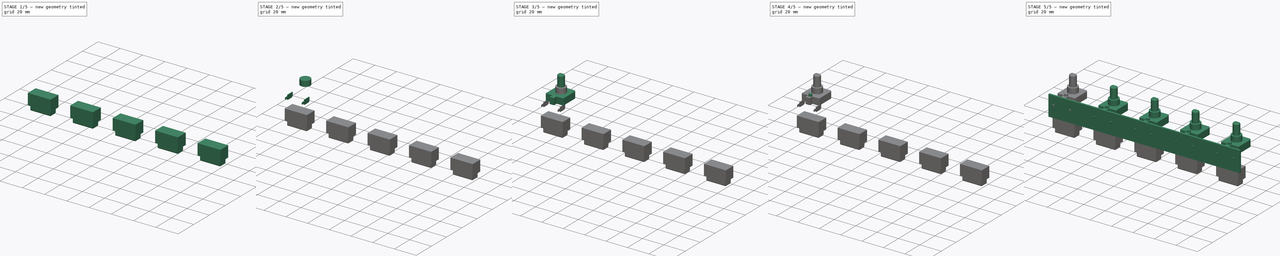
[diagram: build sequence overview — one tinted view per stage of 5, left to right]
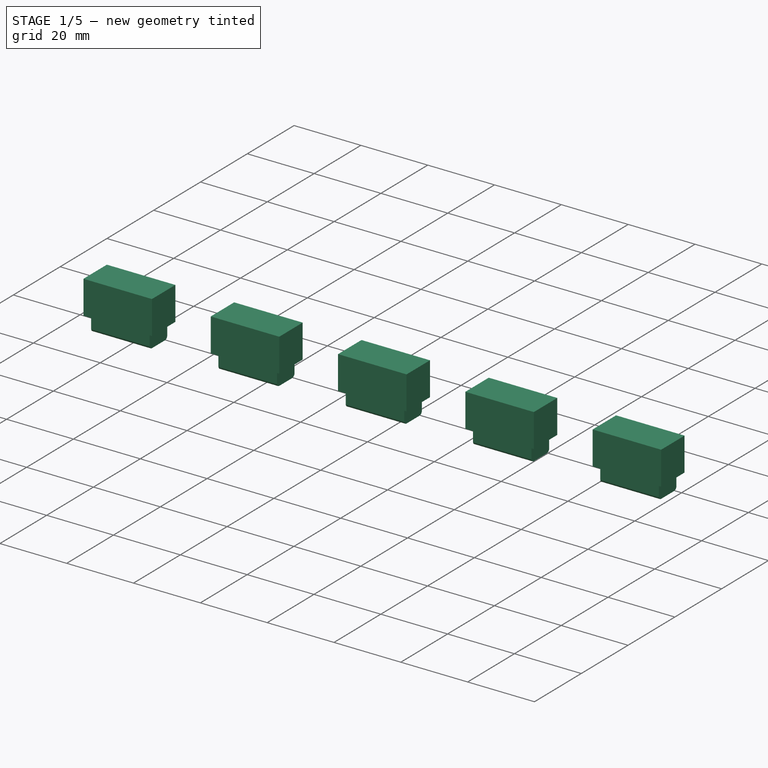
[diagram: stage 1 of 5 — iso view after this stage's code; geometry added in this stage tinted green]
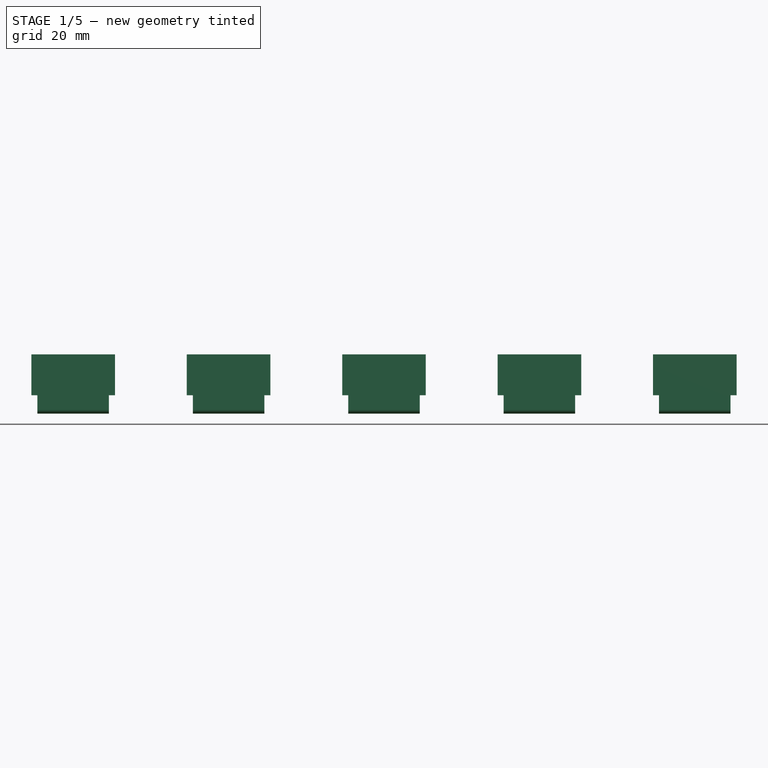
[diagram: stage 1 of 5 — front view after this stage's code; geometry added in this stage tinted green]
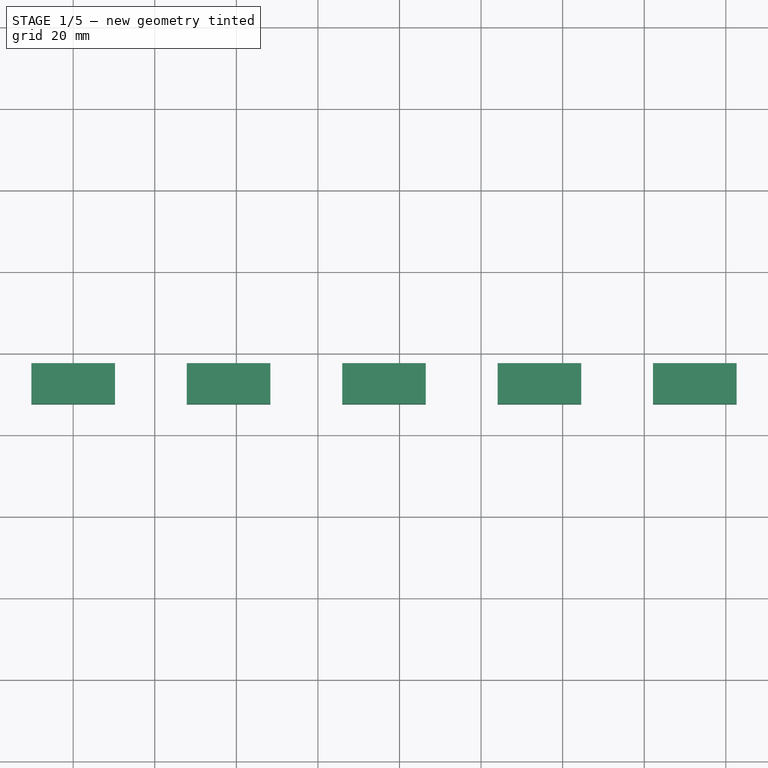
[diagram: stage 1 of 5 — top view after this stage's code; geometry added in this stage tinted green]
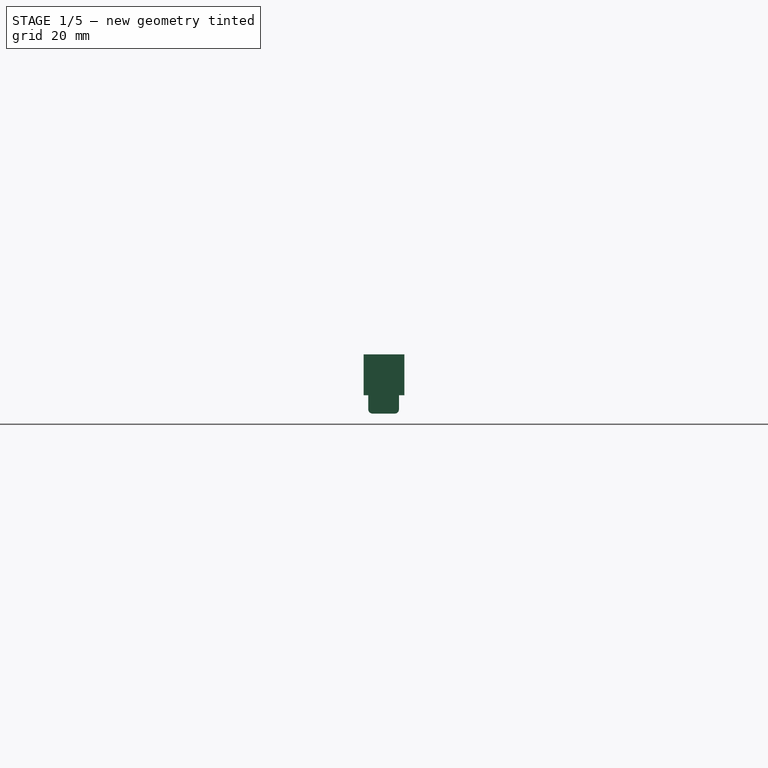
[diagram: stage 1 of 5 — right view after this stage's code; geometry added in this stage tinted green]
FCSTD DOCUMENT  (FreeCAD 0.17R13541 (Git))
Label: encoders
License: All rights reserved
LicenseURL: http://en.wikipedia.org/wiki/All_rights_reserved
objects: Sketcher::SketchObject×10, PartDesign::Pad×9, PartDesign::Body×4, Part::FeaturePython×3, Part::Fuse×3, PartDesign::Chamfer×1, PartDesign::Pocket×1, PartDesign::ShapeBinder×1, PartDesign::Plane×1, PartDesign::Fillet×1
note: 44 computed .brp shape members not serialized (recipe doc carries the construction recipe); baked Part::Feature solids carry a one-line shape summary decoded from their .brp

FEATURE [PartDesign::ShapeBinder] CopyFusion001
FEATURE [PartDesign::Plane] DatumPlane
  MapMode = 5
  Placement = pos=(0,-12.5,0) rot=(0,0.707107,0.707107;3.14159rad)
  Support = -> [CopyFusion001]
FEATURE [Sketcher::SketchObject] Sketch008
  MapMode = 5
  Placement = pos=(0,-12.5,0) rot=(0,0.707107,0.707107;3.14159rad)
  Support = -> [DatumPlane]
  sketch-geometry (4):
    g0: LineSegment StartX=-10.25 StartY=-18 StartZ=0 EndX=10.25 EndY=-18 EndZ=0
    g1: LineSegment StartX=10.25 StartY=-18 StartZ=0 EndX=10.25 EndY=-28 EndZ=0
    g2: LineSegment StartX=10.25 StartY=-28 StartZ=0 EndX=-10.25 EndY=-28 EndZ=0
    g3: LineSegment StartX=-10.25 StartY=-28 StartZ=0 EndX=-10.25 EndY=-18 EndZ=0
  constraints (12):
    c: Coincident(g0,g1)
    c: Coincident(g1,g2)
    c: Coincident(g2,g3)
    c: Coincident(g3,g0)
    c: Horizontal(g0)
    c: Horizontal(g2)
    c: Vertical(g1)
    c: Vertical(g3)
    c: Distance(g2) = 20.5
    c: DistanceX(g-2,g0) = 10.25
    c: DistanceY(g-1,g0) = -18
    c: Distance(g1) = 10
FEATURE [PartDesign::Pad] Pad007
  Length = 10
  Length2 = 100
  Placement = pos=(0,-12.5,0) rot=(0,0.707107,0.707107;3.14159rad)
  Profile = -> Sketch008
  Type = 0
FEATURE [Sketcher::SketchObject] Sketch009
  MapMode = 5
  Placement = pos=(0,-12.5,-28) rot=(0,1,0;3.14159rad)
  Support = -> [Pad007]
  sketch-geometry (4):
    g0: LineSegment StartX=-8.75928 StartY=1.15231 StartZ=0 EndX=8.7674 EndY=1.15231 EndZ=0
    g1: LineSegment StartX=8.7674 StartY=1.15231 StartZ=0 EndX=8.7674 EndY=8.6642 EndZ=0
    g2: LineSegment StartX=-8.75928 StartY=8.6642 StartZ=0 EndX=-8.75928 EndY=1.15231 EndZ=0
    g3: LineSegment StartX=-8.75928 StartY=8.6642 StartZ=0 EndX=8.7674 EndY=8.6642 EndZ=0
  constraints (8):
    c: Horizontal(g0)
    c: Coincident(g0,g1)
    c: Vertical(g1)
    c: Coincident(g2,g0)
    c: Vertical(g2)
    c: Coincident(g3,g2)
    c: Horizontal(g3)
    c: Coincident(g1,g3)
FEATURE [PartDesign::Pad] Pad008
  BaseFeature = -> Pad007
  Length = 4.5
  Length2 = 100
  Placement = pos=(0,-12.5,0) rot=(0,0.707107,0.707107;3.14159rad)
  Profile = -> Sketch009
  Type = 0
FEATURE [PartDesign::Fillet] Fillet
  Base = -> Pad008 [Edge18,Edge23]
  BaseFeature = -> Pad008
  Placement = pos=(0,-12.5,0) rot=(0,0.707107,0.707107;3.14159rad)
  Radius = 1
FEATURE [PartDesign::Body] Body003  label="socket"
  Group = -> [Sketch008,DatumPlane,CopyFusion001,Pad007,Sketch009,Pad008,Fillet]
  Origin = -> Origin003
  Tip = -> Fillet
FEATURE [Part::FeaturePython] Array002  label="sockets"  # Draft array (typed FeaturePython)
  Angle = 360
  ArrayType = 0
  Axis = (0,0,1)
  Base = -> Body003
  Center = (0,0,0)
  Fuse = false
  IntervalAxis = (0,0,0)
  IntervalX = (38.1,0,0)
  IntervalY = (0,1,0)
  IntervalZ = (0,0,0)
  NumberPolar = 1
  NumberX = 5
  NumberY = 1
  NumberZ = 1
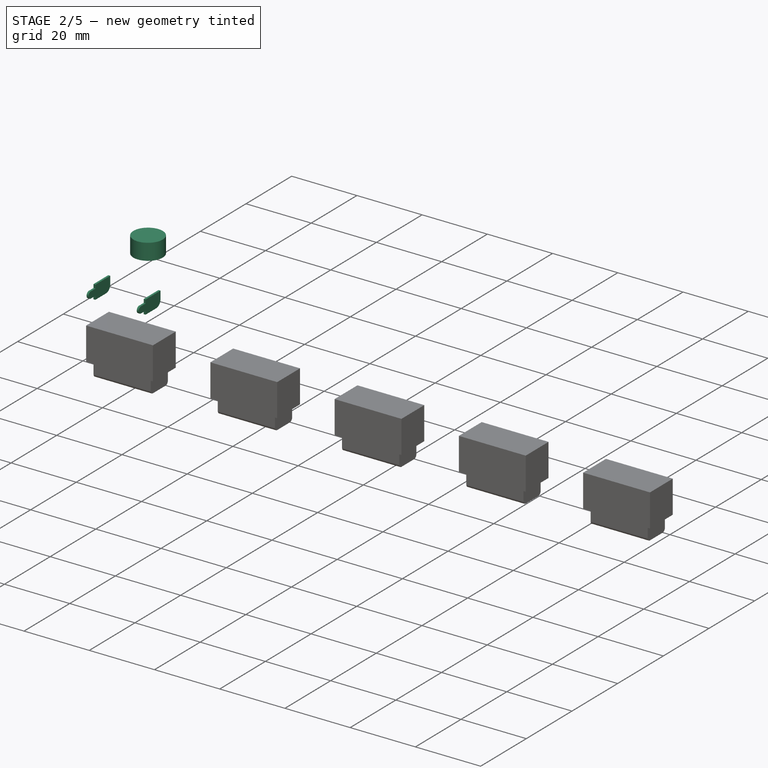
[diagram: stage 2 of 5 — iso view after this stage's code; geometry added in this stage tinted green]
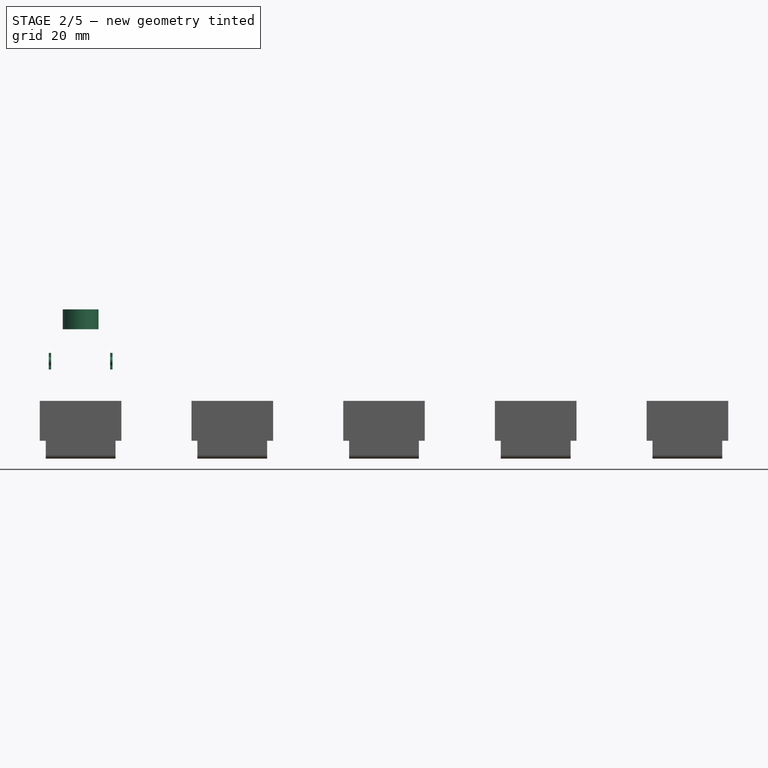
[diagram: stage 2 of 5 — front view after this stage's code; geometry added in this stage tinted green]
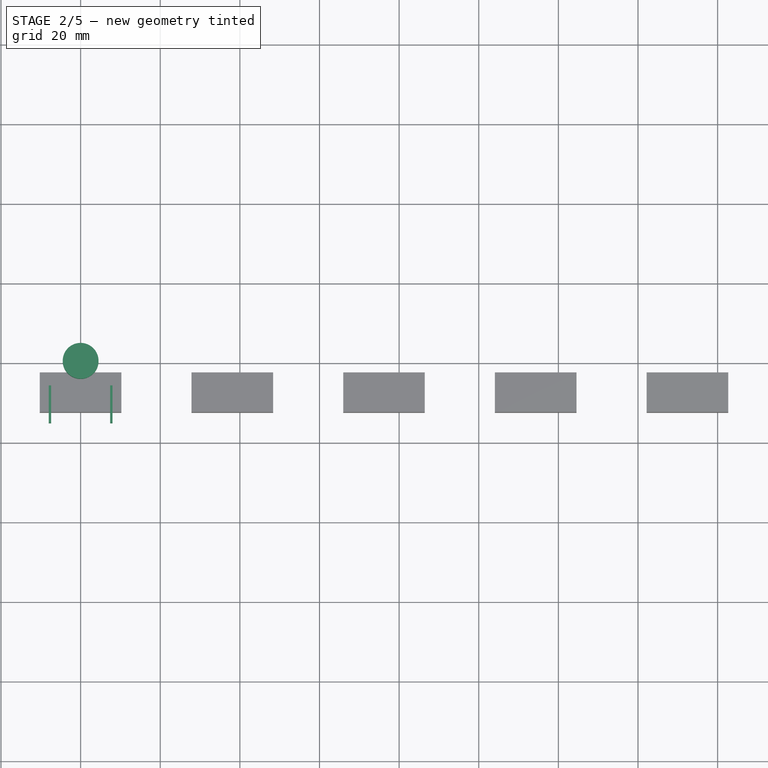
[diagram: stage 2 of 5 — top view after this stage's code; geometry added in this stage tinted green]
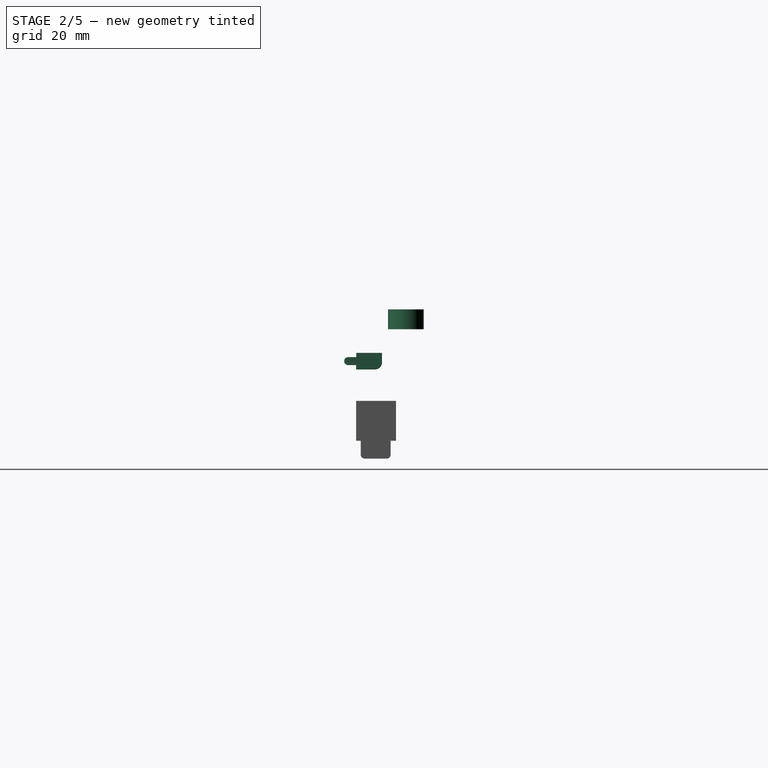
[diagram: stage 2 of 5 — right view after this stage's code; geometry added in this stage tinted green]
FEATURE [Sketcher::SketchObject] Sketch
  MapMode = 5
  Support = -> [XY_Plane]
  sketch-geometry (1):
    g0: Circle CenterX=0 CenterY=0 CenterZ=0 NormalX=0 NormalY=0 NormalZ=1 AngleXU=0 Radius=4.5
  constraints (2):
    c: Coincident(g0,g-1)
    c: Radius(g0) = 4.5
FEATURE [PartDesign::Pad] Pad
  Length = 5
  Length2 = 100
  Profile = -> Sketch
  Type = 0
FEATURE [PartDesign::Body] Body  label="encoder"
  Group = -> [Sketch,Pad,Sketch001,Pad001,Chamfer,Sketch002,Pocket,Sketch003,Pad002,Sketch004,Pad003,Sketch005,Pad004]
  Origin = -> Origin
  Tip = -> Pad004
FEATURE [Sketcher::SketchObject] Sketch006
  MapMode = 5
  Placement = pos=(0,0,0) rot=(0.57735,0.57735,0.57735;2.0944rad)
  Support = -> [YZ_Plane001]
  sketch-geometry (9):
    g0: LineSegment StartX=-5.98946 StartY=-5.92103 StartZ=0 EndX=-5.98946 EndY=-8.32996 EndZ=0
    g1: LineSegment StartX=-7.7595 StartY=-10.1 StartZ=0 EndX=-12.5 EndY=-10.1 EndZ=0
    g2: LineSegment StartX=-12.5 StartY=-10.1 StartZ=0 EndX=-12.5 EndY=-9 EndZ=0
    g3: LineSegment StartX=-12.5 StartY=-9 StartZ=0 EndX=-14.5 EndY=-9 EndZ=0
    g4: LineSegment StartX=-14.5 StartY=-7 StartZ=0 EndX=-12.4748 EndY=-7 EndZ=0
    g5: LineSegment StartX=-12.4748 StartY=-7 StartZ=0 EndX=-12.4748 EndY=-5.92103 EndZ=0
    g6: LineSegment StartX=-12.4748 StartY=-5.92103 StartZ=0 EndX=-5.98946 EndY=-5.92103 EndZ=0
    g7: ArcOfCircle CenterX=-7.7595 CenterY=-8.32996 CenterZ=0 NormalX=0 NormalY=0 NormalZ=1 AngleXU=0 Radius=1.77004 StartAngle=4.71239 EndAngle=6.28319
    g8: ArcOfCircle CenterX=-14.5 CenterY=-8 CenterZ=0 NormalX=0 NormalY=0 NormalZ=1 AngleXU=0 Radius=1 StartAngle=1.5708 EndAngle=4.71239
  constraints (23):
    c: Vertical(g0)
    c: Horizontal(g1)
    c: Coincident(g1,g2)
    c: Vertical(g2)
    c: Coincident(g2,g3)
    c: Horizontal(g4)
    c: Coincident(g4,g5)
    c: Coincident(g5,g6)
    c: Coincident(g6,g0)
    c: Horizontal(g6)
    c: Vertical(g5)
    c: Horizontal(g3)
    c: Tangent(g0,g7) = 1.5708
    c: Tangent(g1,g7) = 1.5708
    c: Coincident(g8,g4)
    c: Coincident(g8,g3)
    c: Vertical(g8,g4)
    c: Distance(g2,g4) = 2
    c: Distance(g4,g1) = 3.1
    c: DistanceX(g-2,g1) = -12.5
    c: Vertical(g8,g3)
    c: DistanceX(g-2,g3) = -14.5
    c: DistanceY(g-1,g8) = -8
FEATURE [PartDesign::Pad] Pad005
  Length = 0.6
  Length2 = 100
  Midplane = true
  Placement = pos=(0,0,0) rot=(0.57735,0.57735,0.57735;2.0944rad)
  Profile = -> Sketch006
  Type = 0
FEATURE [PartDesign::Body] Body001  label="encoder-pattes"
  Group = -> [Sketch006,Pad005]
  Origin = -> Origin001
  Tip = -> Pad005
FEATURE [Part::FeaturePython] Array  # Draft array (typed FeaturePython)
  Angle = 360
  ArrayType = 0
  Axis = (0,0,1)
  Base = -> Pad005
  Center = (0,0,0)
  Fuse = false
  IntervalAxis = (0,0,0)
  IntervalX = (15.4,0,0)
  IntervalY = (0,1,0)
  IntervalZ = (0,0,1)
  NumberPolar = 1
  NumberX = 2
  NumberY = 1
  NumberZ = 1
  Placement = pos=(-7.7,0,0) rot=(0,0,1;0rad)
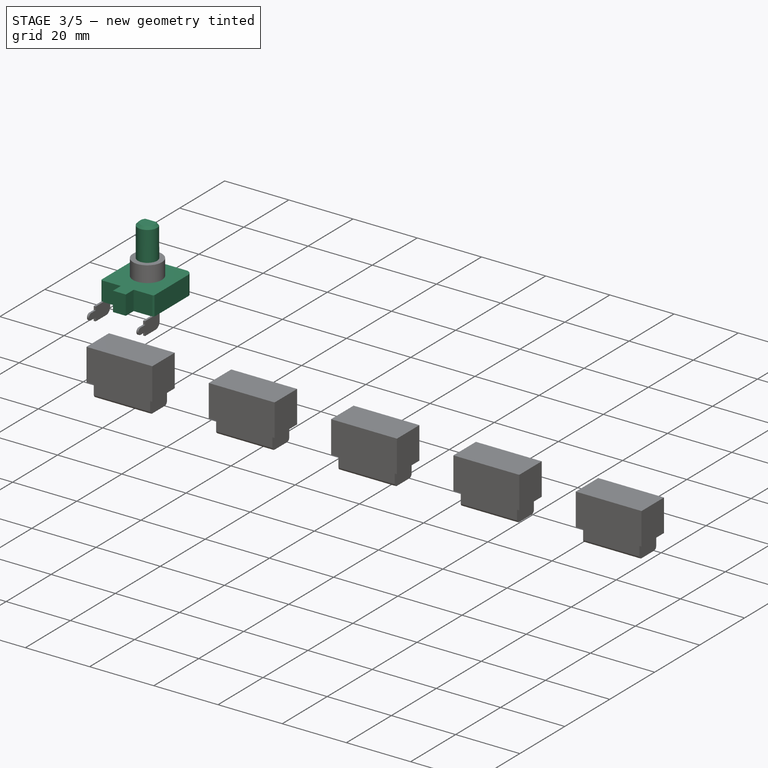
[diagram: stage 3 of 5 — iso view after this stage's code; geometry added in this stage tinted green]
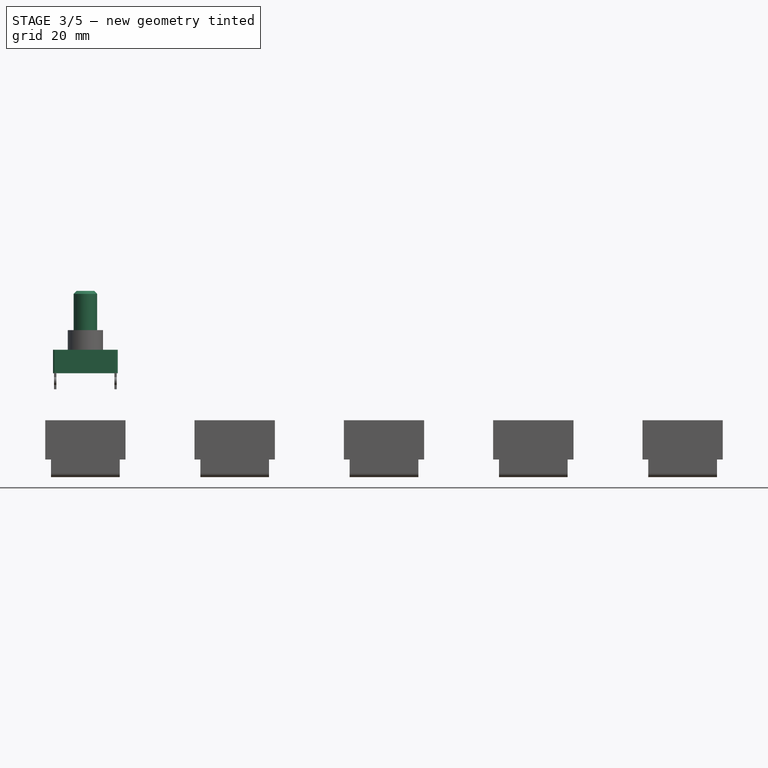
[diagram: stage 3 of 5 — front view after this stage's code; geometry added in this stage tinted green]
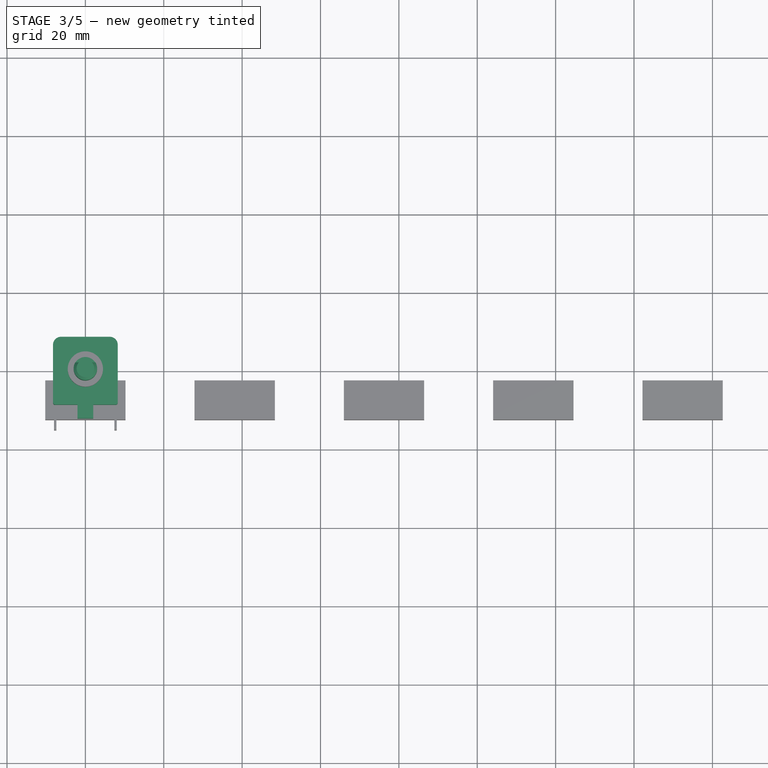
[diagram: stage 3 of 5 — top view after this stage's code; geometry added in this stage tinted green]
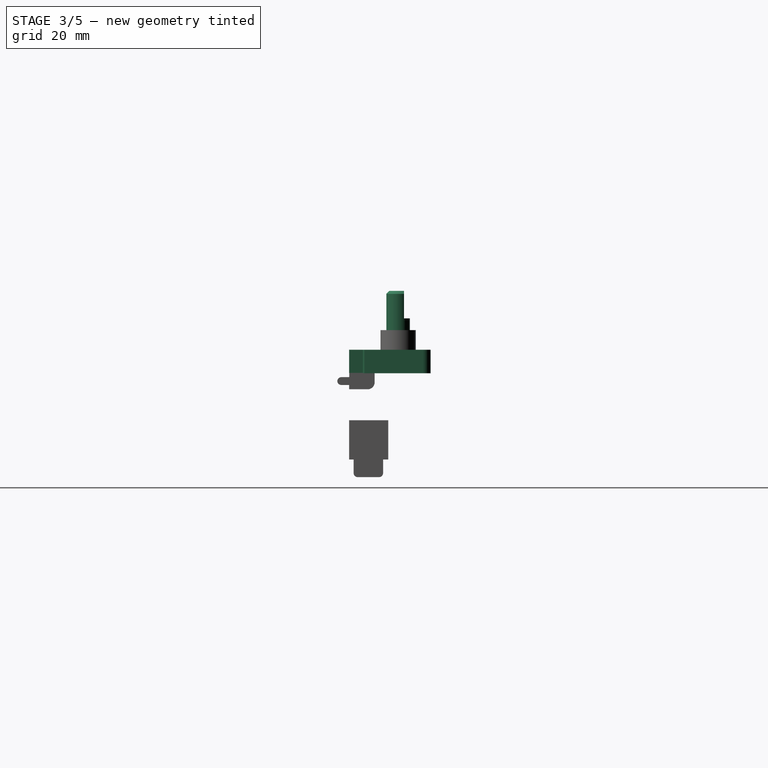
[diagram: stage 3 of 5 — right view after this stage's code; geometry added in this stage tinted green]
FEATURE [Sketcher::SketchObject] Sketch001
  MapMode = 5
  Placement = pos=(0,0,5) rot=(0,0,1;0rad)
  Support = -> [Pad]
  sketch-geometry (1):
    g0: Circle CenterX=0 CenterY=0 CenterZ=0 NormalX=0 NormalY=0 NormalZ=1 AngleXU=0 Radius=3
  constraints (2):
    c: Coincident(g0,g-1)
    c: Radius(g0) = 3
FEATURE [PartDesign::Pad] Pad001
  BaseFeature = -> Pad
  Length = 10
  Length2 = 100
  Profile = -> Sketch001
  Type = 0
FEATURE [PartDesign::Chamfer] Chamfer
  Base = -> Pad001 [Edge6]
  BaseFeature = -> Pad001
  Size = 0.75
FEATURE [Sketcher::SketchObject] Sketch002
  ExternalGeometry = -> [Chamfer]
  MapMode = 5
  Placement = pos=(0,0,15) rot=(0,0,1;0rad)
  Support = -> [Chamfer]
  sketch-geometry (5):
    g0: LineSegment StartX=-2.59808 StartY=3 StartZ=0 EndX=2.59808 EndY=3 EndZ=0
    g1: LineSegment StartX=2.59808 StartY=3 StartZ=0 EndX=2.59808 EndY=1.5 EndZ=0
    g2: LineSegment StartX=2.59808 StartY=1.5 StartZ=0 EndX=-2.59808 EndY=1.5 EndZ=0
    g3: LineSegment StartX=-2.59808 StartY=1.5 StartZ=0 EndX=-2.59808 EndY=3 EndZ=0
    g4: GeomPoint X=0 Y=3 Z=0
  constraints (14):
    c: Coincident(g0,g1)
    c: Coincident(g1,g2)
    c: Coincident(g2,g3)
    c: Coincident(g3,g0)
    c: Horizontal(g0)
    c: Horizontal(g2)
    c: Vertical(g1)
    c: Vertical(g3)
    c: PointOnObject(g4,g-2)
    c: PointOnObject(g4,g0)
    c: Distance(g1) = 1.5
    c: PointOnObject(g4,g-3)
    c: PointOnObject(g1,g-3)
    c: PointOnObject(g2,g-3)
FEATURE [PartDesign::Pocket] Pocket
  BaseFeature = -> Chamfer
  Length = 7
  Length2 = 100
  Profile = -> Sketch002
  Type = 0
FEATURE [Sketcher::SketchObject] Sketch003
  MapMode = 5
  Support = -> [XY_Plane]
  sketch-geometry (12):
    g0: LineSegment StartX=-6.25 StartY=8.3 StartZ=0 EndX=6.25 EndY=8.3 EndZ=0
    g1: LineSegment StartX=8.25 StartY=6.3 StartZ=0 EndX=8.25 EndY=-8.5 EndZ=0
    g2: LineSegment StartX=-8.25 StartY=-8.5 StartZ=0 EndX=-8.25 EndY=6.3 EndZ=0
    g3: ArcOfCircle CenterX=6.25 CenterY=6.3 CenterZ=0 NormalX=0 NormalY=0 NormalZ=1 AngleXU=0 Radius=2 StartAngle=0 EndAngle=1.5708
    g4: ArcOfCircle CenterX=-6.25 CenterY=6.3 CenterZ=0 NormalX=0 NormalY=0 NormalZ=1 AngleXU=0 Radius=2 StartAngle=1.5708 EndAngle=3.14159
    g5: ArcOfCircle CenterX=7.75 CenterY=-8.5 CenterZ=0 NormalX=0 NormalY=0 NormalZ=1 AngleXU=0 Radius=0.5 StartAngle=4.71239 EndAngle=6.28319
    g6: ArcOfCircle CenterX=-7.75 CenterY=-8.5 CenterZ=0 NormalX=0 NormalY=0 NormalZ=1 AngleXU=0 Radius=0.5 StartAngle=3.14159 EndAngle=4.71239
    g7: LineSegment StartX=-7.75 StartY=-9 StartZ=0 EndX=-2 EndY=-9 EndZ=0
    g8: LineSegment StartX=-2 StartY=-9 StartZ=0 EndX=-2 EndY=-12.5 EndZ=0
    g9: LineSegment StartX=-2 StartY=-12.5 StartZ=0 EndX=2 EndY=-12.5 EndZ=0
    g10: LineSegment StartX=2 StartY=-12.5 StartZ=0 EndX=2 EndY=-9 EndZ=0
    g11: LineSegment StartX=2 StartY=-9 StartZ=0 EndX=7.75 EndY=-9 EndZ=0
  constraints (33):
    c: Horizontal(g0)
    c: Vertical(g1)
    c: Vertical(g2)
    c: Tangent(g0,g3) = 1.5708
    c: Tangent(g1,g3) = 1.5708
    c: Tangent(g0,g4) = 1.5708
    c: Tangent(g2,g4) = 1.5708
    c: Tangent(g1,g5) = 1.5708
    c: Tangent(g2,g6) = 1.5708
    c: Radius(g5) = 0.5
    c: Equal(g5,g6)
    c: DistanceX(g2,g1) = 16.5
    c: DistanceX(g-1,g1) = 8.25
    c: DistanceY(g-1,g0) = 8.3
    c: Radius(g3) = 2
    c: Equal(g3,g4)
    c: Tangent(g6,g7) = -1.5708
    c: Coincident(g7,g8)
    c: Vertical(g8)
    c: Coincident(g8,g9)
    c: Horizontal(g9)
    c: Coincident(g9,g10)
    c: Vertical(g10)
    c: Coincident(g10,g11)
    c: Horizontal(g11)
    c: Coincident(g5,g11)
    c: Equal(g1,g2)
    c: DistanceY(g7,g-1) = 9
    c: Horizontal(g7)
    c: Horizontal(g5,g7)
    c: Distance(g9) = 4
    c: DistanceX(g-2,g9) = 2
    c: DistanceY(g-1,g9) = -12.5
FEATURE [PartDesign::Pad] Pad002
  BaseFeature = -> Pocket
  Length = 6
  Length2 = 100
  Profile = -> Sketch003
  Reversed = true
  Type = 0
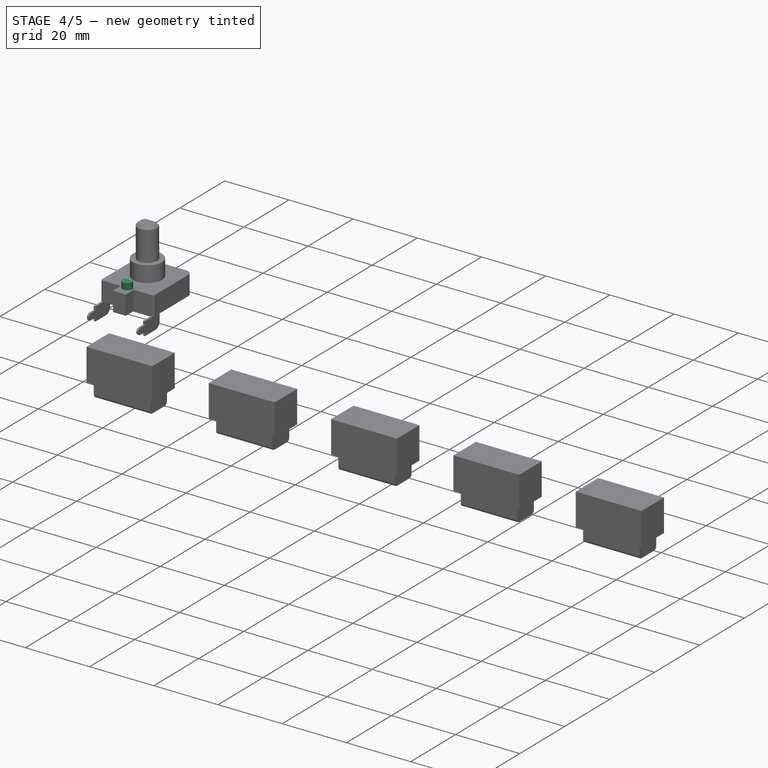
[diagram: stage 4 of 5 — iso view after this stage's code; geometry added in this stage tinted green]
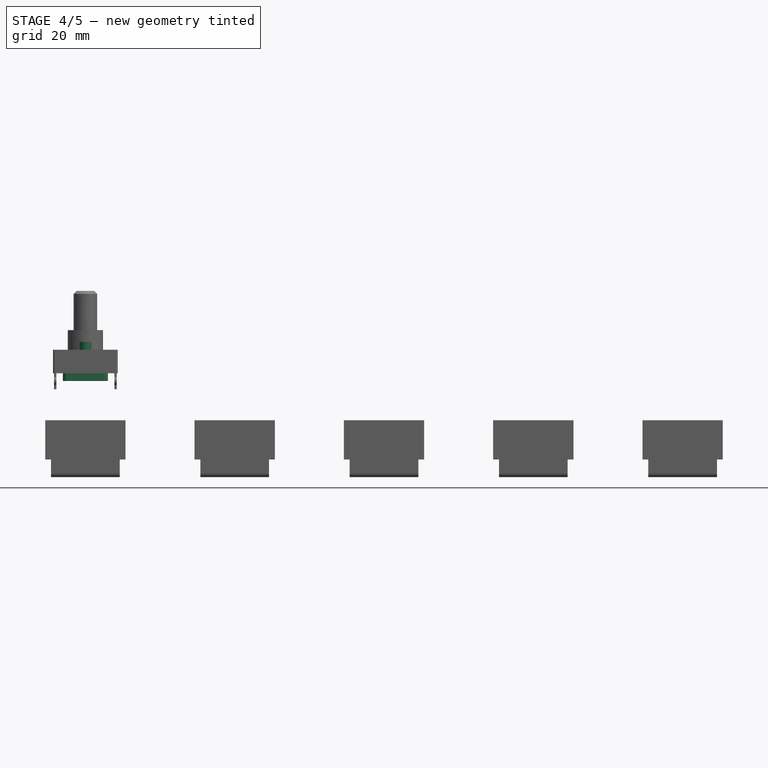
[diagram: stage 4 of 5 — front view after this stage's code; geometry added in this stage tinted green]
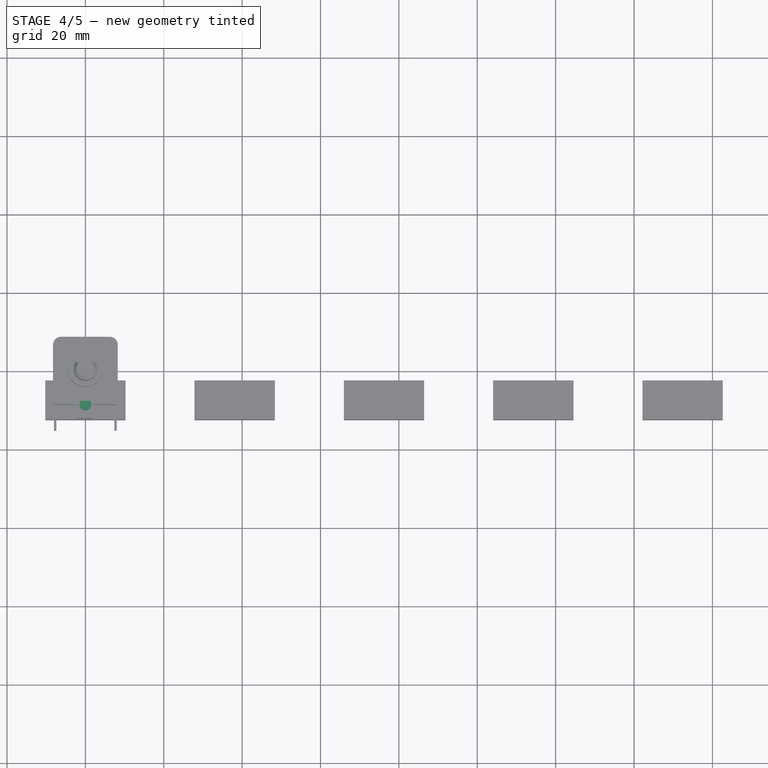
[diagram: stage 4 of 5 — top view after this stage's code; geometry added in this stage tinted green]
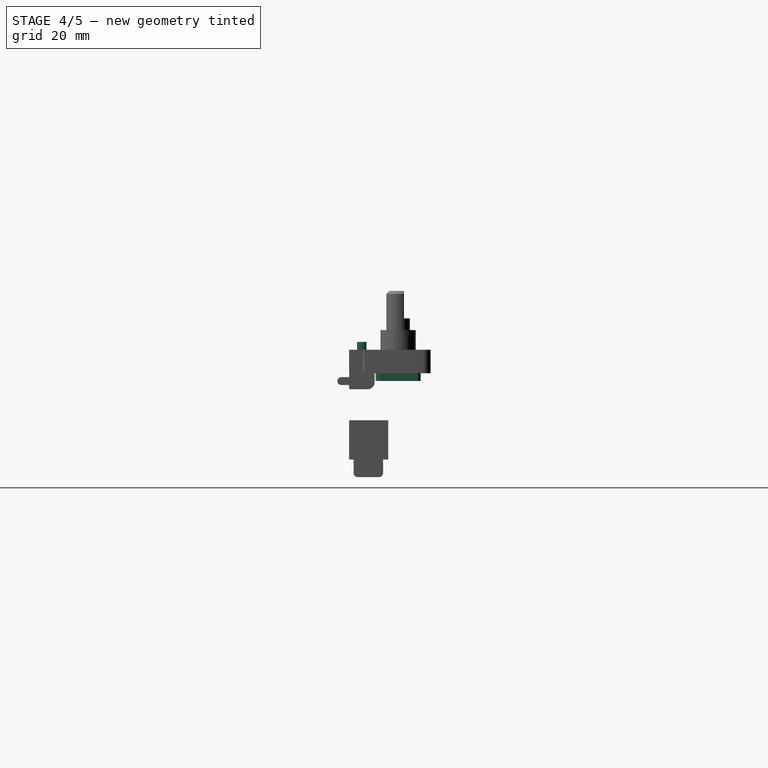
[diagram: stage 4 of 5 — right view after this stage's code; geometry added in this stage tinted green]
FEATURE [Sketcher::SketchObject] Sketch004
  MapMode = 5
  Placement = pos=(0,0,-6) rot=(1,0,0;3.14159rad)
  Support = -> [Pad002]
  sketch-geometry (8):
    g0: LineSegment StartX=-4.75 StartY=5.75 StartZ=0 EndX=4.75 EndY=5.75 EndZ=0
    g1: LineSegment StartX=5.75 StartY=4.75 StartZ=0 EndX=5.75 EndY=-4.75 EndZ=0
    g2: LineSegment StartX=4.75 StartY=-5.75 StartZ=0 EndX=-4.75 EndY=-5.75 EndZ=0
    g3: LineSegment StartX=-5.75 StartY=-4.75 StartZ=0 EndX=-5.75 EndY=4.75 EndZ=0
    g4: ArcOfCircle CenterX=4.75 CenterY=4.75 CenterZ=0 NormalX=0 NormalY=0 NormalZ=1 AngleXU=0 Radius=1 StartAngle=-1e-12 EndAngle=1.5708
    g5: ArcOfCircle CenterX=-4.75 CenterY=4.75 CenterZ=0 NormalX=0 NormalY=0 NormalZ=1 AngleXU=0 Radius=1 StartAngle=1.5708 EndAngle=3.14159
    g6: ArcOfCircle CenterX=-4.75 CenterY=-4.75 CenterZ=0 NormalX=0 NormalY=0 NormalZ=1 AngleXU=0 Radius=1 StartAngle=3.14159 EndAngle=4.71239
    g7: ArcOfCircle CenterX=4.75 CenterY=-4.75 CenterZ=0 NormalX=0 NormalY=0 NormalZ=1 AngleXU=0 Radius=1 StartAngle=4.71239 EndAngle=6.28319
  constraints (20):
    c: Horizontal(g0)
    c: Horizontal(g2)
    c: Vertical(g1)
    c: Vertical(g3)
    c: Tangent(g0,g4) = 1.5708
    c: Tangent(g1,g4) = 1.5708
    c: Tangent(g0,g5) = 1.5708
    c: Tangent(g3,g5) = 1.5708
    c: Tangent(g2,g6) = 1.5708
    c: Tangent(g3,g6) = 1.5708
    c: Tangent(g1,g7) = 1.5708
    c: Tangent(g2,g7) = 1.5708
    c: Radius(g4) = 1
    c: Equal(g4,g5)
    c: Equal(g4,g6)
    c: Equal(g4,g7)
    c: Distance(g4,g5) = 9.5
    c: Distance(g4,g7) = 9.5
    c: DistanceX(g-2,g4) = 4.75
    c: DistanceY(g-1,g4) = 4.75
FEATURE [PartDesign::Pad] Pad003
  BaseFeature = -> Pad002
  Length = 2
  Length2 = 100
  Profile = -> Sketch004
  Type = 0
FEATURE [Sketcher::SketchObject] Sketch005
  ExternalGeometry = -> [Pad003]
  MapMode = 5
  Support = -> [Pad003]
  sketch-geometry (2):
    g0: ArcOfCircle CenterX=0 CenterY=-9 CenterZ=0 NormalX=0 NormalY=0 NormalZ=1 AngleXU=0 Radius=1.5 StartAngle=2.48518 EndAngle=6.9396
    g1: LineSegment StartX=-1.18828 StartY=-8.08458 StartZ=0 EndX=1.18828 EndY=-8.08458 EndZ=0
  constraints (6):
    c: PointOnObject(g0,g-2)
    c: Coincident(g1,g0)
    c: Coincident(g1,g0)
    c: Horizontal(g1)
    c: Horizontal(g0,g-3)
    c: Radius(g0) = 1.5
FEATURE [PartDesign::Pad] Pad004
  BaseFeature = -> Pad003
  Length = 2
  Length2 = 100
  Profile = -> Sketch005
  Type = 0
FEATURE [Part::Fuse] Fusion  label="encoder001"
  Base = -> Body
  Tool = -> Array
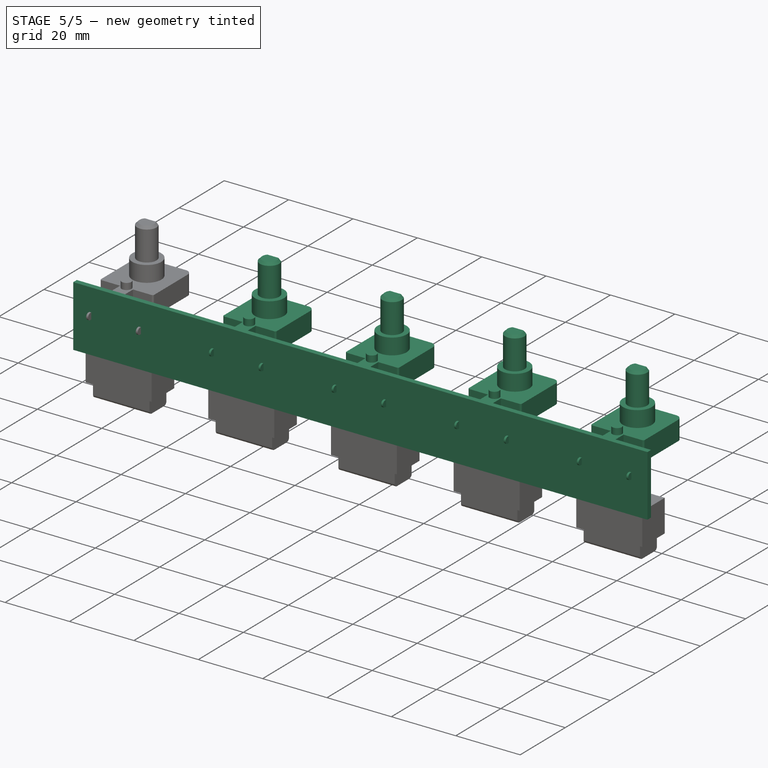
[diagram: stage 5 of 5 — iso view after this stage's code; geometry added in this stage tinted green]
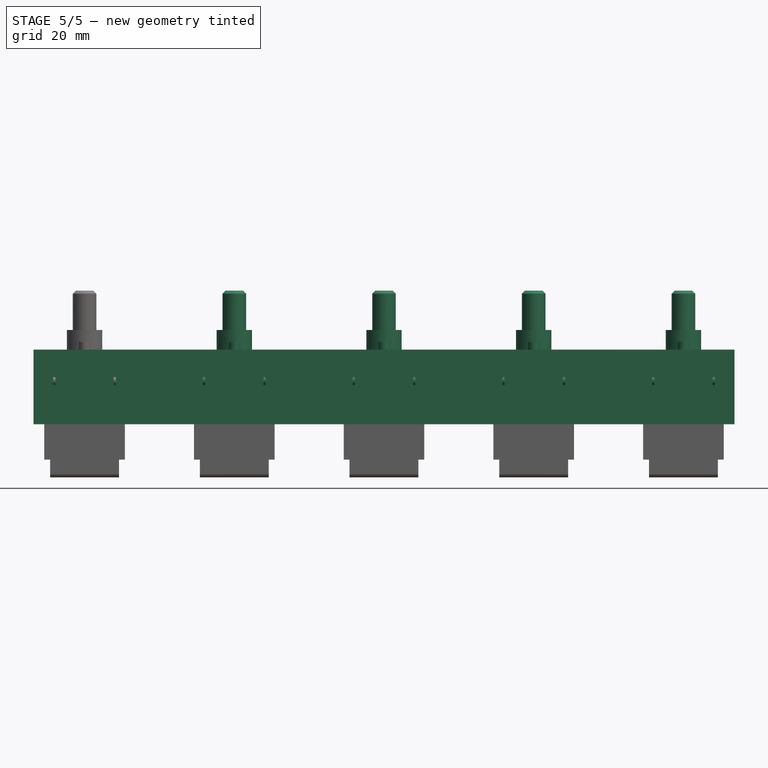
[diagram: stage 5 of 5 — front view after this stage's code; geometry added in this stage tinted green]
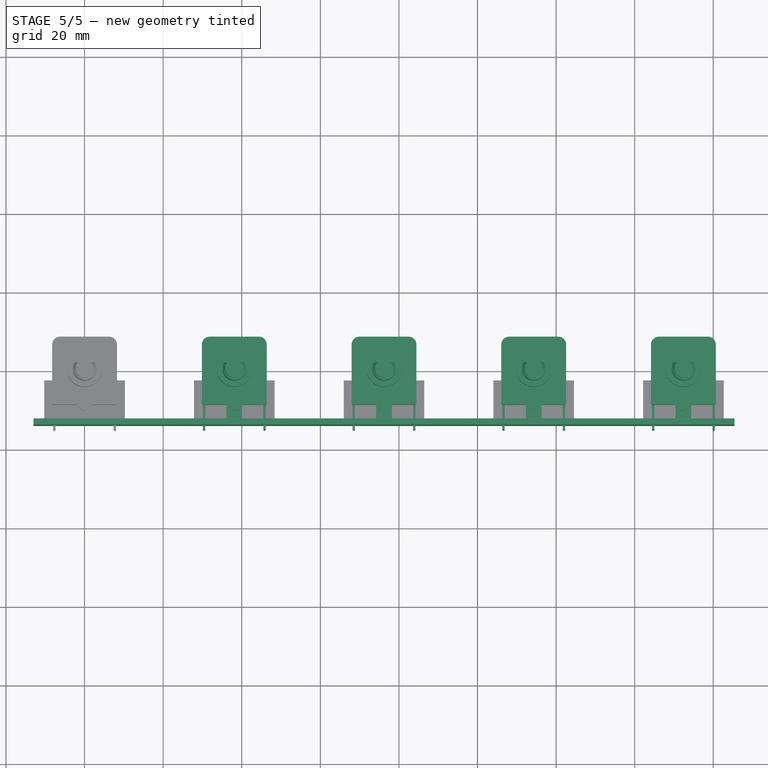
[diagram: stage 5 of 5 — top view after this stage's code; geometry added in this stage tinted green]
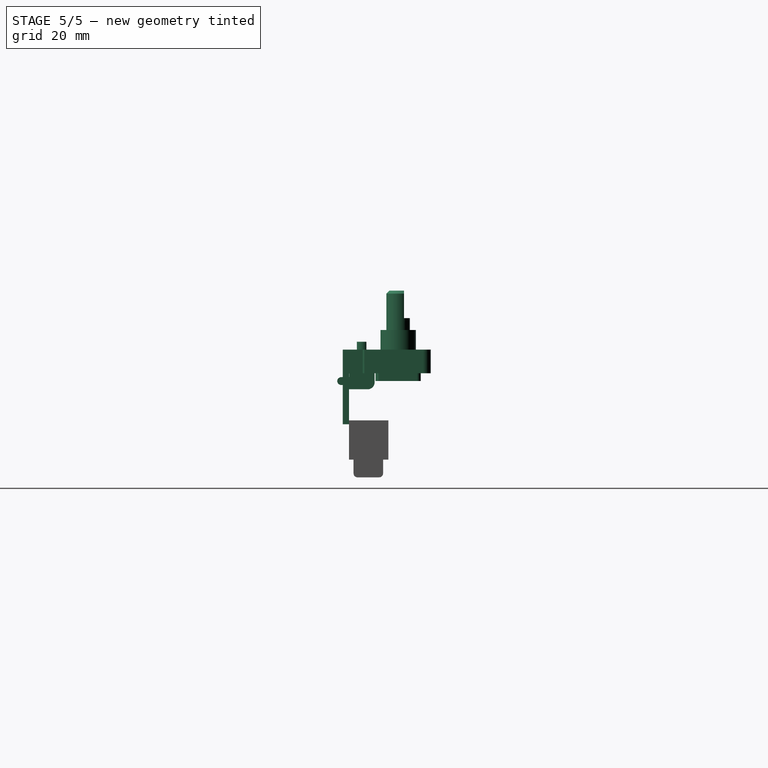
[diagram: stage 5 of 5 — right view after this stage's code; geometry added in this stage tinted green]
FEATURE [Sketcher::SketchObject] Sketch007
  MapMode = 5
  Support = -> [XY_Plane002]
  sketch-geometry (4):
    g0: LineSegment StartX=-13 StartY=-12.5 StartZ=0 EndX=165.4 EndY=-12.5 EndZ=0
    g1: LineSegment StartX=165.4 StartY=-12.5 StartZ=0 EndX=165.4 EndY=-14.1 EndZ=0
    g2: LineSegment StartX=165.4 StartY=-14.1 StartZ=0 EndX=-13 EndY=-14.1 EndZ=0
    g3: LineSegment StartX=-13 StartY=-14.1 StartZ=0 EndX=-13 EndY=-12.5 EndZ=0
  constraints (12):
    c: Coincident(g0,g1)
    c: Coincident(g1,g2)
    c: Coincident(g2,g3)
    c: Coincident(g3,g0)
    c: Horizontal(g0)
    c: Horizontal(g2)
    c: Vertical(g1)
    c: Vertical(g3)
    c: Distance(g1) = 1.6
    c: Distance(g2) = 178.4
    c: DistanceX(g-2,g2) = -13
    c: DistanceY(g-1,g0) = -12.5
FEATURE [PartDesign::Pad] Pad006
  Length = 19
  Length2 = 100
  Profile = -> Sketch007
  Reversed = true
  Type = 0
FEATURE [PartDesign::Body] Body002  label="bakelite"
  Group = -> [Sketch007,Pad006]
  Origin = -> Origin002
  Tip = -> Pad006
FEATURE [Part::FeaturePython] Array001  label="encoders"  # Draft array (typed FeaturePython)
  Angle = 360
  ArrayType = 0
  Axis = (0,0,1)
  Base = -> Fusion
  Center = (0,0,0)
  Fuse = false
  IntervalAxis = (0,0,0)
  IntervalX = (38.1,0,0)
  IntervalY = (0,1,0)
  IntervalZ = (0,0,1)
  NumberPolar = 1
  NumberX = 5
  NumberY = 1
  NumberZ = 1
FEATURE [Part::Fuse] Fusion001  label="fuse-bakelite"
  Base = -> Body002
  Tool = -> Array001
FEATURE [Part::Fuse] Fusion002  label="fuse-sockets"
  Base = -> Fusion001
  Refine = true
  Tool = -> Array002
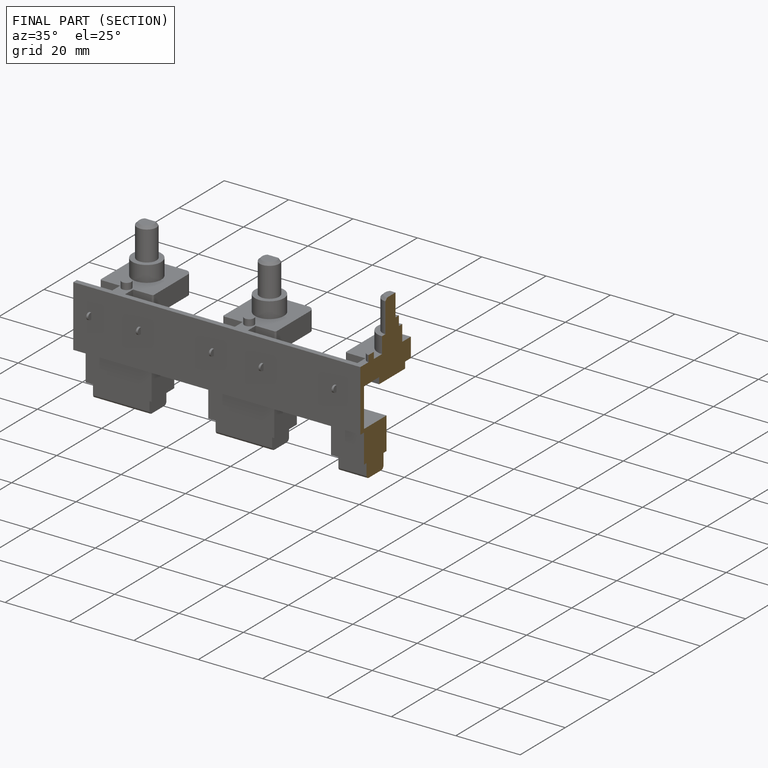
[diagram: finished part — half-section view (interior)]
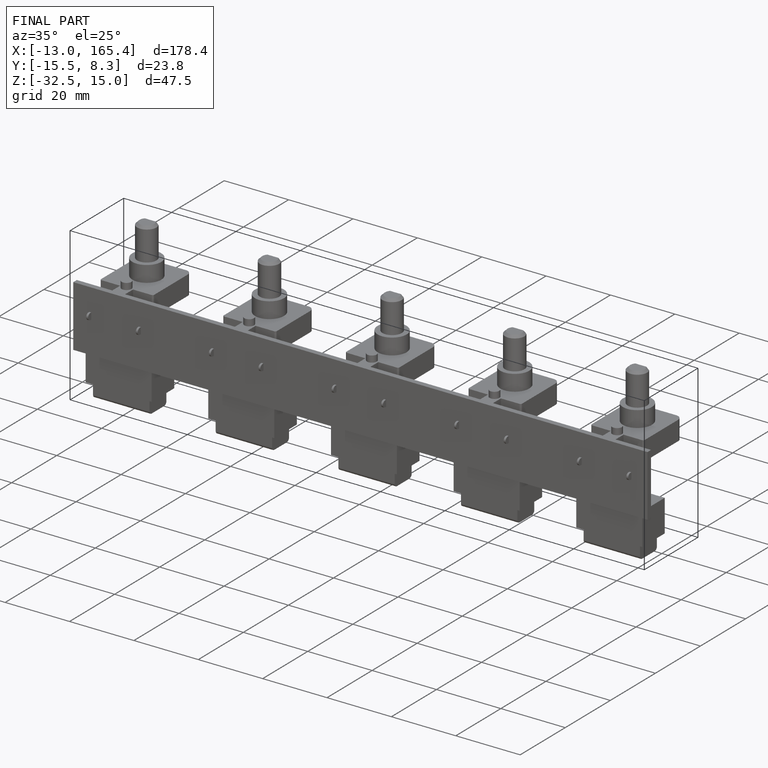
[diagram: finished part — iso view with bounding-box wireframe]
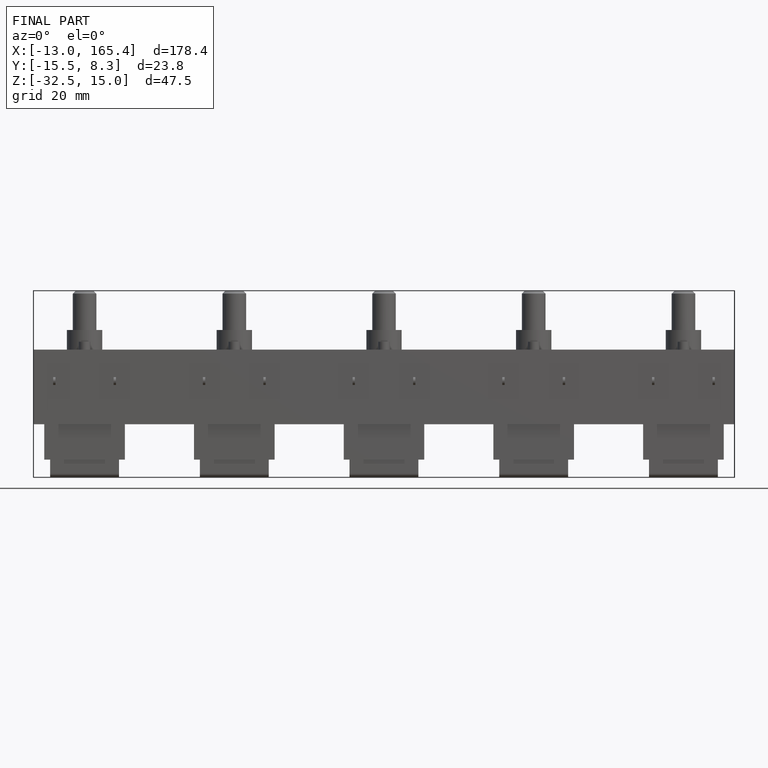
[diagram: finished part — front view with bounding-box wireframe]
